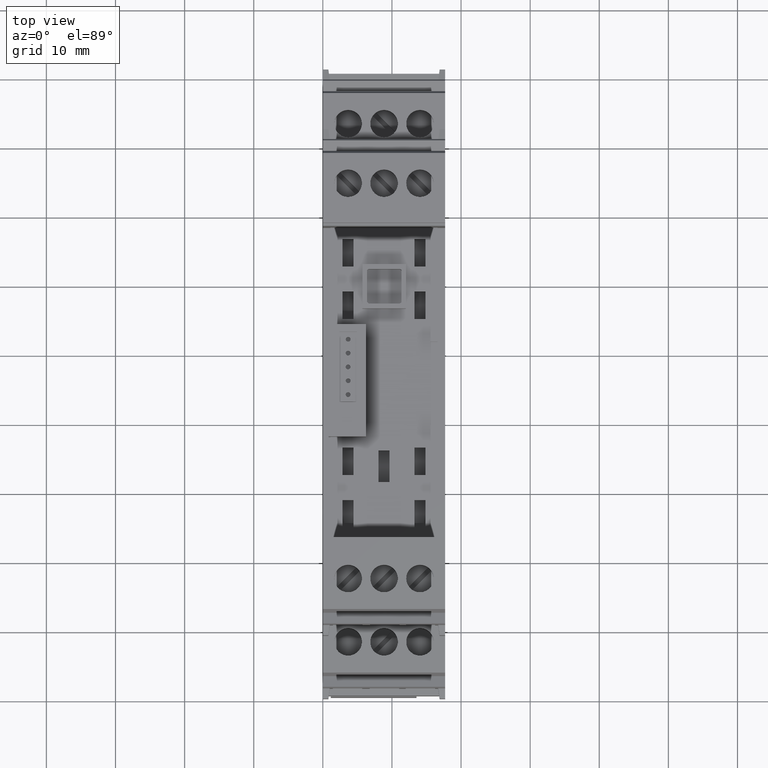
[diagram: clean part render]
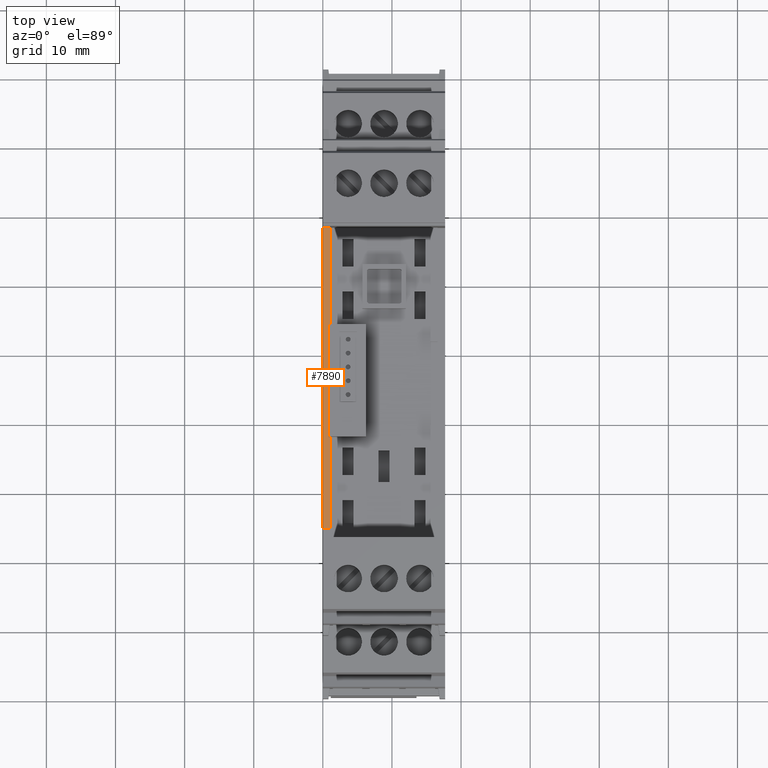
[diagram: same view with one face highlighted and labeled with its STEP entity id]
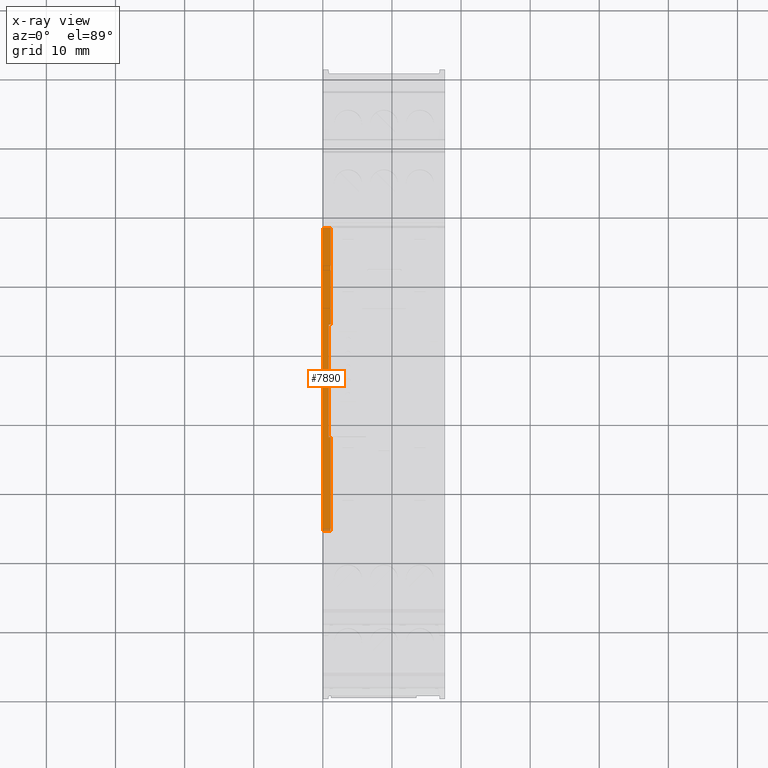
[diagram: x-ray of the same camera — body ghosted, the highlighted face saturated]
A machine part, top view. The second image highlights one B-rep face of the part: STEP entity #7890.
The next image is the same camera in x-ray: the body ghosted, the highlighted face saturated — about 1% of this face is hidden behind the body in this view.
In plain terms, the highlighted planar face has unit normal (0, -0, -1).
Its self-contained STEP definition (entity closure, byte-faithful):
#520=CARTESIAN_POINT('',(161.653020459409,28.2748719555886,
-1.11334144345002));
#530=VERTEX_POINT('',#520);
#560=CARTESIAN_POINT('',(192.854165374852,28.2748719555886,
-1.11334144345002));
#570=DIRECTION('',(-1.,2.48285112233651E-16,1.12832605431061E-23));
#580=VECTOR('',#570,1.);
#590=LINE('',#560,#580);
#600=CARTESIAN_POINT('',(117.753020248102,28.2748719555887,
-1.11334144345002));
#610=VERTEX_POINT('',#600);
#620=EDGE_CURVE('',#530,#610,#590,.T.);
#7170=CARTESIAN_POINT('',(117.753020249413,28.2748719569082,
28.8000000028098));
#7180=DIRECTION('',(-4.3829349678474E-11,-4.41130550527766E-11,-1.));
#7190=VECTOR('',#7180,1.);
#7200=LINE('',#7170,#7190);
#7210=CARTESIAN_POINT('',(117.75302024815,28.2748719556372,
-0.013341448915634));
#7220=VERTEX_POINT('',#7210);
#7230=EDGE_CURVE('',#7220,#610,#7200,.T.);
#7340=CARTESIAN_POINT('',(116.653020510462,28.2748719565789,
21.3341609586151));
#7350=DIRECTION('',(-2.48285112236532E-16,-1.,4.41130550527766E-11));
#7360=DIRECTION('',(1.,-2.48285112236532E-16,-1.12897228916417E-23));
#7370=AXIS2_PLACEMENT_3D('',#7340,#7350,#7360);
#7380=PLANE('',#7370);
#7390=CARTESIAN_POINT('',(192.854165374889,28.2748719556253,
-0.283120303938135));
#7400=DIRECTION('',(1.,-2.48285112233651E-16,-1.12961852401773E-23));
#7410=VECTOR('',#7400,1.);
#7420=LINE('',#7390,#7410);
#7430=CARTESIAN_POINT('',(131.390064798614,28.2748719556253,
-0.283120303938135));
#7440=VERTEX_POINT('',#7430);
#7450=CARTESIAN_POINT('',(147.629778988147,28.2748719556253,
-0.283120303938135));
#7460=VERTEX_POINT('',#7450);
#7470=EDGE_CURVE('',#7440,#7460,#7420,.T.);
#7480=ORIENTED_EDGE('',*,*,#7470,.T.);
#7490=CARTESIAN_POINT('',(131.390064798614,28.2748719569082,
28.8000000022121));
#7500=DIRECTION('',(-1.13026475887129E-23,-4.41130550527766E-11,-1.));
#7510=VECTOR('',#7500,1.);
#7520=LINE('',#7490,#7510);
#7530=CARTESIAN_POINT('',(131.390064798614,28.2748719556372,
-0.0133414489156305));
#7540=VERTEX_POINT('',#7530);
#7550=EDGE_CURVE('',#7540,#7440,#7520,.T.);
#7560=ORIENTED_EDGE('',*,*,#7550,.T.);
#7570=CARTESIAN_POINT('',(192.854165374901,28.2748719556372,
-0.0133414489156305));
#7580=DIRECTION('',(1.,-2.48285112233651E-16,-1.12961852401773E-23));
#7590=VECTOR('',#7580,1.);
#7600=LINE('',#7570,#7590);
#7610=EDGE_CURVE('',#7220,#7540,#7600,.T.);
#7620=ORIENTED_EDGE('',*,*,#7610,.T.);
#7630=ORIENTED_EDGE('',*,*,#7230,.F.);
#7640=ORIENTED_EDGE('',*,*,#620,.T.);
#7650=CARTESIAN_POINT('',(161.653020459409,28.2748719569082,
28.8000000008857));
#7660=DIRECTION('',(2.92615141690634E-23,4.41130550527766E-11,1.));
#7670=VECTOR('',#7660,1.);
#7680=LINE('',#7650,#7670);
#7690=CARTESIAN_POINT('',(161.653020459409,28.2748719556372,
-0.0133414489116443));
#7700=VERTEX_POINT('',#7690);
#7710=EDGE_CURVE('',#530,#7700,#7680,.T.);
#7720=ORIENTED_EDGE('',*,*,#7710,.F.);
#7730=CARTESIAN_POINT('',(192.854165374901,28.2748719556372,
-0.0133414489116443));
#7740=DIRECTION('',(1.,-2.48285112233651E-16,-1.12961852401773E-23));
#7750=VECTOR('',#7740,1.);
#7760=LINE('',#7730,#7750);
#7770=CARTESIAN_POINT('',(147.629778988147,28.2748719556372,
-0.0133414489116443));
#7780=VERTEX_POINT('',#7770);
#7790=EDGE_CURVE('',#7780,#7700,#7760,.T.);
#7800=ORIENTED_EDGE('',*,*,#7790,.T.);
#7810=CARTESIAN_POINT('',(147.629778988147,28.2748719569082,
28.8000000015003));
#7820=DIRECTION('',(1.13026475887129E-23,4.41130550527766E-11,1.));
#7830=VECTOR('',#7820,1.);
#7840=LINE('',#7810,#7830);
#7850=EDGE_CURVE('',#7460,#7780,#7840,.T.);
#7860=ORIENTED_EDGE('',*,*,#7850,.T.);
#7870=EDGE_LOOP('',(#7860,#7800,#7720,#7640,#7630,#7620,#7560,#7480));
#7880=FACE_OUTER_BOUND('',#7870,.T.);
#7890=ADVANCED_FACE('',(#7880),#7380,.F.);